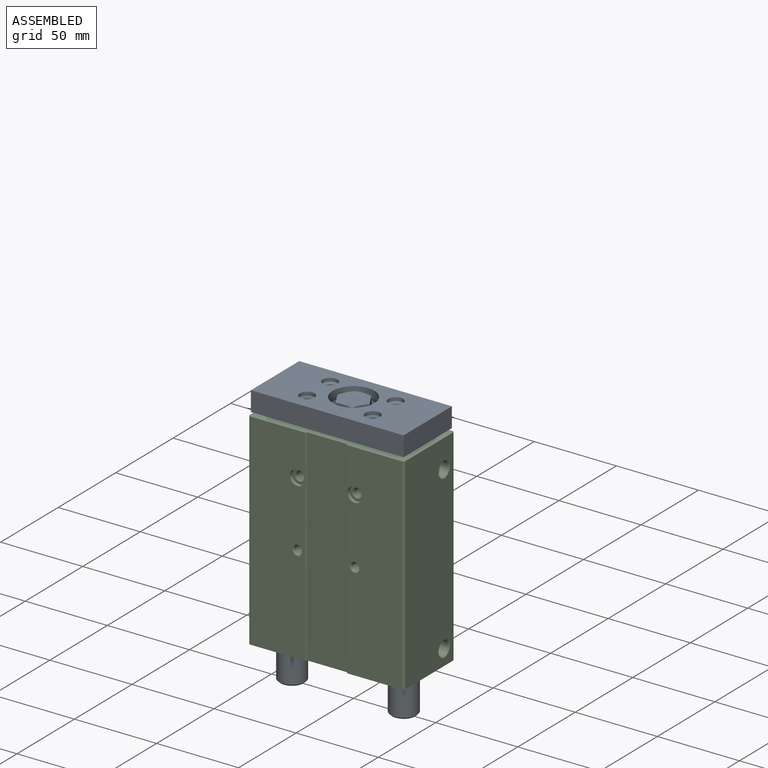
[diagram: assembled view]
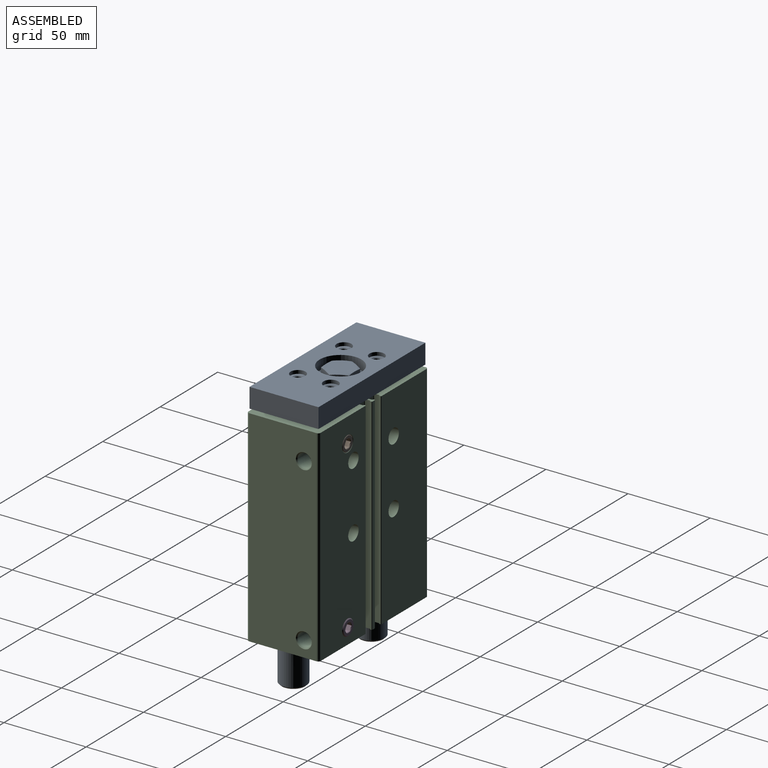
[diagram: assembled view, second angle]
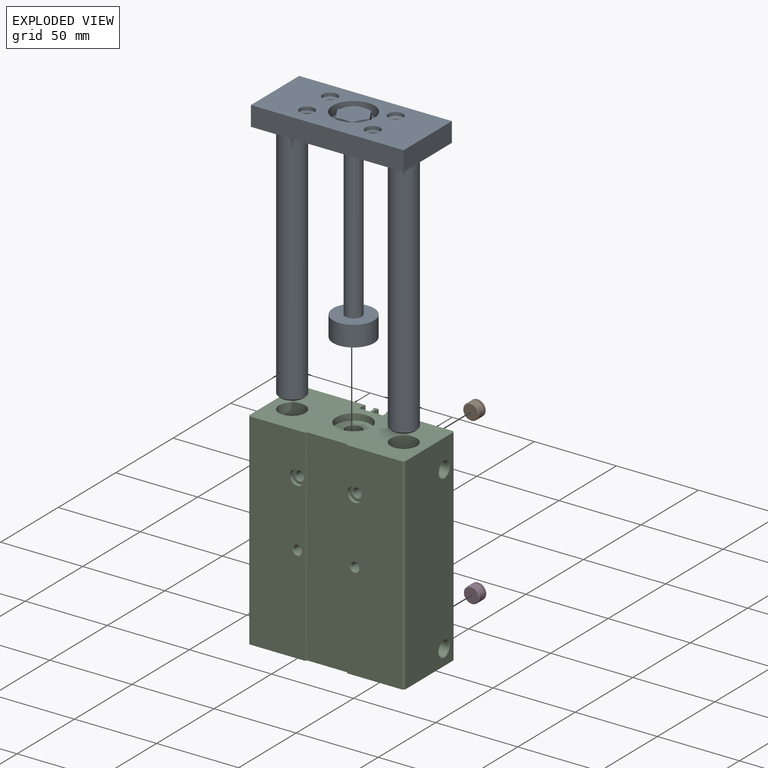
[diagram: exploded view]
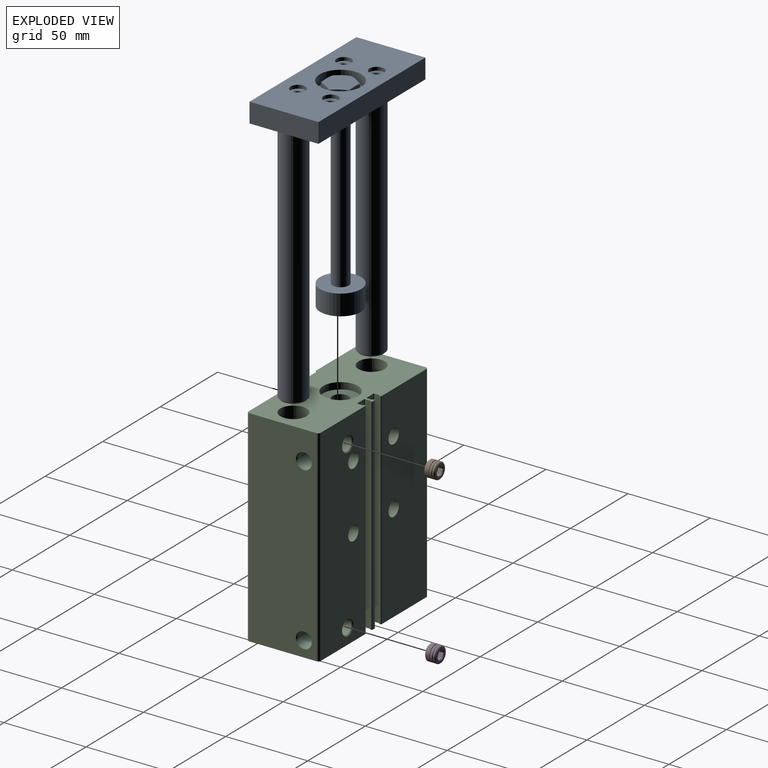
[diagram: exploded view, second angle]
ASSEMBLY  parts=4 mates=3
PART A: 76 faces, bbox 163.7x42.7x93.7 mm
  f0: plane 9.21x5.71mm, normal (0,-0.5,0.87), area 46.7mm2, adj f10,f12,f69,f70,f72,f74
  f1: plane 10.54x5.73mm, normal (0,1,0), area 46.7mm2, adj f62,f66,f67,f71,f72,f73
  f2: plane 9.21x5.71mm, normal (0,-0.5,-0.87), area 46.7mm2, adj f63,f64,f65,f70,f71,f75
  f3: plane 93x12mm, normal (0,-1,0), area 1116mm2, adj f4,f5,f33,f41
  f4: plane 42x12mm, normal (0,0,-1), area 504mm2, adj f3,f33,f41,f68
  f5: plane 42x12mm, normal (0,0,1), area 504mm2, adj f3,f33,f41,f68
  f6: cone r=8.5mm half-angle=75deg, axis (1,0,0), area 6.4mm2, adj f9,f30,f55
  f7: cone r=8.5mm half-angle=75deg, axis (1,0,0), area 6.4mm2, adj f9,f17,f55
  f8: cone r=8.5mm half-angle=75deg, axis (1,0,0), area 6.4mm2, adj f15,f30,f55
  f9: plane 10.54x5.73mm, normal (0,-1,0), area 46.7mm2, adj f6,f7,f17,f27,f28,f30
  f10: cone r=8.5mm half-angle=75deg, axis (1,0,0), area 6.4mm2, adj f0,f61,f72
  f11: cone r=8.5mm half-angle=75deg, axis (1,0,0), area 6.4mm2, adj f14,f15,f55
  f12: cone r=10.2mm half-angle=75deg, axis (-1,0,0), area 6.4mm2, adj f0,f33,f70
  f13: cone r=8.5mm half-angle=75deg, axis (1,0,0), area 6.4mm2, adj f14,f31,f55
  f14: plane 10.54x5.73mm, normal (0,1,0), area 46.7mm2, adj f11,f13,f15,f25,f29,f31
  f15: plane 9.21x5.71mm, normal (0,0.5,-0.87), area 46.7mm2, adj f8,f11,f14,f16,f29,f30
  f16: cone r=10.2mm half-angle=75deg, axis (-1,0,0), area 6.4mm2, adj f15,f24,f30
  f17: plane 9.21x5.71mm, normal (0,-0.5,0.87), area 46.7mm2, adj f7,f9,f26,f27,f31,f32
  f18: cone r=7mm half-angle=45deg, axis (1,0,0), area 66.6mm2, adj f19,f20
  f19: plane 14x14mm, normal (-1,0,0), area 153.9mm2, adj f18
  f20: cylinder r=8mm len=150mm, axis (-1,0,0), area 7539.8mm2, adj f18,f33
  f21: cylinder r=8mm len=150mm, axis (-1,0,0), area 7539.8mm2, adj f22,f33
  f22: cone r=7mm half-angle=45deg, axis (1,0,0), area 66.6mm2, adj f21,f23
  f23: plane 14x14mm, normal (-1,0,0), area 153.9mm2, adj f22
  f24: plane 17x17mm, normal (1,0,0), area 227mm2, adj f16,f25,f26,f27,f28,f29
  f25: cone r=10.2mm half-angle=75deg, axis (-1,0,0), area 6.4mm2, adj f14,f24,f31
  f26: cone r=10.2mm half-angle=75deg, axis (-1,0,0), area 6.4mm2, adj f17,f24,f31
  f27: cone r=10.2mm half-angle=75deg, axis (-1,0,0), area 6.4mm2, adj f9,f17,f24
  f28: cone r=10.2mm half-angle=75deg, axis (-1,0,0), area 6.4mm2, adj f9,f24,f30
  f29: cone r=10.2mm half-angle=75deg, axis (-1,0,0), area 6.4mm2, adj f14,f15,f24
  f30: plane 9.21x5.71mm, normal (0,-0.5,-0.87), area 46.7mm2, adj f6,f8,f9,f15,f16,f28
  f31: plane 9.21x5.71mm, normal (0,0.5,0.87), area 46.7mm2, adj f13,f14,f17,f25,f26,f32
  f32: cone r=8.5mm half-angle=75deg, axis (1,0,0), area 6.4mm2, adj f17,f31,f55
  f33: plane 93x42mm, normal (-1,0,0), area 3163.8mm2, adj f3,f4,f5,f12,f20,f21,f34,f40
  f34: cone r=3mm half-angle=45deg, axis (-1,0,0), area 13.1mm2, adj f33,f35
  f35: cylinder r=2.46mm len=8.82mm, axis (-1,0,0), area 136.2mm2, adj f34,f46
  f36: cylinder r=4.5mm len=9mm, axis (-1,0,0), area 59.4mm2, adj f37,f41
  f37: plane 9x9mm, normal (1,0,0), area 35.3mm2, adj f36,f38
  f38: cone r=2.46mm half-angle=45deg, axis (1,0,0), area 13.1mm2, adj f37,f39
  f39: cylinder r=2.46mm len=8.82mm, axis (-1,0,0), area 136.2mm2, adj f38,f40
  f40: cone r=3mm half-angle=45deg, axis (-1,0,0), area 13.1mm2, adj f33,f39
  f41: plane 93x42mm, normal (1,0,0), area 3140.8mm2, adj f3,f4,f5,f36,f44,f49,f54,f56
  f42: cone r=3mm half-angle=45deg, axis (-1,0,0), area 13.1mm2, adj f33,f43
  f43: cylinder r=2.46mm len=8.82mm, axis (-1,0,0), area 136.2mm2, adj f42,f47
  f44: cylinder r=4.5mm len=9mm, axis (-1,0,0), area 59.4mm2, adj f41,f45
  f45: plane 9x9mm, normal (1,0,0), area 35.3mm2, adj f44,f46
  f46: cone r=2.46mm half-angle=45deg, axis (1,0,0), area 13.1mm2, adj f35,f45
  f47: cone r=2.46mm half-angle=45deg, axis (1,0,0), area 13.1mm2, adj f43,f48
  f48: plane 9x9mm, normal (1,0,0), area 35.3mm2, adj f47,f49
  f49: cylinder r=4.5mm len=9mm, axis (-1,0,0), area 59.4mm2, adj f41,f48
  f50: cone r=3mm half-angle=45deg, axis (-1,0,0), area 13.1mm2, adj f33,f51
  f51: cylinder r=2.46mm len=8.82mm, axis (-1,0,0), area 136.2mm2, adj f50,f52
  f52: cone r=2.46mm half-angle=45deg, axis (1,0,0), area 13.1mm2, adj f51,f53
  f53: plane 9x9mm, normal (1,0,0), area 35.3mm2, adj f52,f54
  f54: cylinder r=4.5mm len=9mm, axis (-1,0,0), area 59.4mm2, adj f41,f53
  f55: plane 25.5x25.5mm, normal (1,0,0), area 283.7mm2, adj f6,f7,f8,f11,f13,f32,f56
  f56: cylinder r=12.75mm len=25.5mm, axis (-1,0,0), area 480.7mm2, adj f41,f55
  f57: plane 25x25mm, normal (-1,0,0), area 490.9mm2, adj f58
  f58: cylinder r=12.5mm len=25mm, axis (-1,0,0), area 981.7mm2, adj f57,f59
  f59: plane 25x25mm, normal (1,0,0), area 412.3mm2, adj f58,f60
  f60: cylinder r=5mm len=94.5mm, axis (-1,0,0), area 2968.8mm2, adj f59,f61
  f61: plane 17x17mm, normal (-1,0,0), area 148.4mm2, adj f10,f60,f62,f63,f73,f74,f75
  f62: cone r=8.5mm half-angle=75deg, axis (1,0,0), area 6.4mm2, adj f1,f61,f71
  f63: cone r=8.5mm half-angle=75deg, axis (1,0,0), area 6.4mm2, adj f2,f61,f71
  f64: cone r=10.2mm half-angle=75deg, axis (-1,0,0), area 6.4mm2, adj f2,f33,f70
  f65: cone r=10.2mm half-angle=75deg, axis (-1,0,0), area 6.4mm2, adj f2,f33,f71
  f66: cone r=10.2mm half-angle=75deg, axis (-1,0,0), area 6.4mm2, adj f1,f33,f71
  f67: cone r=10.2mm half-angle=75deg, axis (-1,0,0), area 6.4mm2, adj f1,f33,f72
  f68: plane 93x12mm, normal (0,1,0), area 1116mm2, adj f4,f5,f33,f41
  f69: cone r=10.2mm half-angle=75deg, axis (-1,0,0), area 6.4mm2, adj f0,f33,f72
  f70: plane 10.54x5.73mm, normal (0,-1,0), area 46.7mm2, adj f0,f2,f12,f64,f74,f75
  f71: plane 9.21x5.71mm, normal (0,0.5,-0.87), area 46.7mm2, adj f1,f2,f62,f63,f65,f66
  f72: plane 9.21x5.71mm, normal (0,0.5,0.87), area 46.7mm2, adj f0,f1,f10,f67,f69,f73
  f73: cone r=8.5mm half-angle=75deg, axis (1,0,0), area 6.4mm2, adj f1,f61,f72
  f74: cone r=8.5mm half-angle=75deg, axis (1,0,0), area 6.4mm2, adj f0,f61,f70
  f75: cone r=8.5mm half-angle=75deg, axis (1,0,0), area 6.4mm2, adj f2,f61,f70
PART B: 25 faces, bbox 9.7x9.7x6.5 mm
  f0: plane 2.99x2.5mm, normal (0.5,-0.87,0), area 7.9mm2, adj f1,f4,f11,f19,f21
  f1: plane 2.99x2.5mm, normal (-0.5,-0.87,0), area 7.9mm2, adj f0,f2,f11,f21,f22
  f2: plane 2.99x2.89mm, normal (-1,0,0), area 7.9mm2, adj f1,f6,f11,f22,f23
  f3: plane 2.99x2.5mm, normal (0.5,0.87,0), area 7.9mm2, adj f4,f11,f20,f23,f24
  f4: plane 2.99x2.89mm, normal (1,0,0), area 7.9mm2, adj f0,f3,f11,f19,f20
  f5: cone r=2.5mm half-angle=74.5deg, axis (0,0,1), area 20.4mm2, adj f6,f19,f20,f21,f22,f24
  f6: plane 2.17x1.25mm, normal (0,0,1), area 0.3mm2, adj f2,f5,f23
  f7: cylinder r=4.86mm len=9.73mm, axis (0,0,1), area 27.5mm2, adj f13,f14
  f8: plane 8.73x8.73mm, normal (0,0,1), area 33.4mm2, adj f11,f13
  f9: cylinder r=4.86mm len=9.73mm, axis (0,0,1), area 33.6mm2, adj f15,f17
  f10: cylinder r=4.86mm len=9.73mm, axis (0,0,1), area 76.4mm2, adj f12,f18
  f11: cone r=2.9mm half-angle=45deg, axis (0,0,1), area 6.7mm2, adj f0,f1,f2,f3,f4,f8,f23
  f12: cone r=4.86mm half-angle=45deg, axis (0,0,1), area 20.5mm2, adj f10,f16
  f13: cone r=4.36mm half-angle=45deg, axis (0,0,-1), area 20.5mm2, adj f7,f8
  f14: plane 9.73x9.73mm, normal (0,0,-1), area 14.5mm2, adj f7,f15
  f15: cone r=4.36mm half-angle=45deg, axis (0,0,-1), area 20.5mm2, adj f9,f14
  f16: plane 8.73x8.73mm, normal (0,0,-1), area 59.8mm2, adj f12
  f17: cone r=4.86mm half-angle=45deg, axis (0,0,1), area 20.5mm2, adj f9,f18
  f18: plane 9.73x9.73mm, normal (0,0,1), area 14.5mm2, adj f10,f17
  f19: plane 2.17x1.25mm, normal (0,0,1), area 0.3mm2, adj f0,f4,f5
  f20: plane 2.17x1.25mm, normal (0,0,1), area 0.3mm2, adj f3,f4,f5
  f21: plane 2.5x0.72mm, normal (0,0,1), area 0.3mm2, adj f0,f1,f5
  f22: plane 2.17x1.25mm, normal (0,0,1), area 0.3mm2, adj f1,f2,f5
  f23: plane 2.99x2.5mm, normal (-0.5,0.87,0), area 7.9mm2, adj f2,f3,f6,f11,f24
  f24: plane 2.5x0.72mm, normal (0,0,1), area 0.3mm2, adj f3,f5,f23
PART C: 131 faces, bbox 125.6x44x95 mm
  f0: cone r=2.46mm half-angle=60deg, axis (-1,0,0), area 21.9mm2, adj f1
  f1: cylinder r=2.46mm len=14.04mm, axis (-1,0,0), area 216.9mm2, adj f0,f2
  f2: cone r=3mm half-angle=45deg, axis (-1,0,0), area 13.1mm2, adj f1,f3
  f3: plane 95x44mm, normal (-1,0,0), area 3499.2mm2, adj f2,f4,f5,f6,f7,f8,f9,f10
  f4: cylinder r=0.4mm len=125.6mm, axis (-1,0,0), area 78.9mm2, adj f3,f5,f47,f55
  f5: plane 125.6x0.7mm, normal (0,0,-1), area 87.9mm2, adj f3,f4,f6,f55
  f6: cylinder r=0.2mm len=125.6mm, axis (-1,0,0), area 39.5mm2, adj f3,f5,f7,f55
  f7: plane 125.6x0.25mm, normal (0,-1,0), area 31.4mm2, adj f3,f6,f8,f55
  f8: cylinder r=0.2mm len=125.6mm, axis (-1,0,0), area 39.5mm2, adj f3,f7,f9,f55
  f9: plane 125.6x3.1mm, normal (0,0,-1), area 389.4mm2, adj f3,f8,f10,f55
  f10: cylinder r=0.4mm len=125.6mm, axis (-1,0,0), area 78.9mm2, adj f3,f9,f11,f55
  f11: plane 125.6x5.7mm, normal (0,1,0), area 715.9mm2, adj f3,f10,f12,f55
  f12: cylinder r=0.4mm len=125.6mm, axis (-1,0,0), area 78.9mm2, adj f3,f11,f13,f55
  f13: plane 125.6x3.1mm, normal (0,0,1), area 389.4mm2, adj f3,f12,f14,f55
  f14: cylinder r=0.2mm len=125.6mm, axis (-1,0,0), area 39.5mm2, adj f3,f13,f15,f55
  f15: plane 125.6x0.25mm, normal (0,-1,0), area 31.4mm2, adj f3,f14,f16,f55
  f16: cylinder r=0.2mm len=125.6mm, axis (-1,0,0), area 39.5mm2, adj f3,f15,f17,f55
  f17: plane 125.6x0.7mm, normal (0,0,1), area 87.9mm2, adj f3,f16,f18,f55
  f18: cylinder r=0.4mm len=125.6mm, axis (-1,0,0), area 78.9mm2, adj f3,f17,f19,f55
  f19: plane 125.6x2mm, normal (0,1,0), area 251.2mm2, adj f3,f18,f20,f55
  f20: cylinder r=0.4mm len=125.6mm, axis (-1,0,0), area 78.9mm2, adj f3,f19,f21,f55
  f21: plane 125.6x0.7mm, normal (0,0,-1), area 87.9mm2, adj f3,f20,f22,f55
  f22: cylinder r=0.2mm len=125.6mm, axis (-1,0,0), area 39.5mm2, adj f3,f21,f23,f55
  f23: plane 125.6x0.25mm, normal (0,-1,0), area 31.4mm2, adj f3,f22,f24,f55
  f24: cylinder r=0.2mm len=125.6mm, axis (-1,0,0), area 39.5mm2, adj f3,f23,f25,f55
  f25: plane 125.6x3.1mm, normal (0,0,-1), area 389.4mm2, adj f3,f24,f26,f55
  f26: cylinder r=0.4mm len=125.6mm, axis (-1,0,0), area 78.9mm2, adj f3,f25,f27,f55
  f27: plane 125.6x5.7mm, normal (0,1,0), area 715.9mm2, adj f3,f26,f28,f55
  f28: cylinder r=0.4mm len=125.6mm, axis (-1,0,0), area 78.9mm2, adj f3,f27,f29,f55
  f29: plane 125.6x3.1mm, normal (0,0,1), area 389.4mm2, adj f3,f28,f30,f55
  f30: cylinder r=0.2mm len=125.6mm, axis (-1,0,0), area 39.5mm2, adj f3,f29,f31,f55
  f31: plane 125.6x0.25mm, normal (0,-1,0), area 31.4mm2, adj f3,f30,f32,f55
  f32: cylinder r=0.2mm len=125.6mm, axis (-1,0,0), area 39.5mm2, adj f3,f31,f33,f55
  f33: plane 125.6x0.7mm, normal (0,0,1), area 87.9mm2, adj f3,f32,f34,f55
  f34: cylinder r=0.4mm len=125.6mm, axis (-1,0,0), area 78.9mm2, adj f3,f33,f35,f55
  f35: plane 125.6x39mm, normal (0,1,0), area 4622.5mm2, adj f3,f34,f36,f55,f56,f57,f58,f59
  f36: cylinder r=1.5mm len=125.6mm, axis (-1,0,0), area 295.9mm2, adj f3,f35,f37,f55
  f37: plane 125.6x41mm, normal (0,0,-1), area 5000.9mm2, adj f3,f36,f38,f55,f60,f61
  f38: cylinder r=1.5mm len=125.6mm, axis (-1,0,0), area 295.9mm2, adj f3,f37,f39,f55
  f39: plane 125.6x33.2mm, normal (0,-1,0), area 4078mm2, adj f3,f38,f40,f55,f62,f63
  f40: plane 125.6x1mm, normal (0,-0.5,0.87), area 145mm2, adj f3,f39,f41,f55
  f41: plane 125.6x24.45mm, normal (0,-1,0), area 3070.3mm2, adj f3,f40,f42,f55
  f42: plane 125.6x1mm, normal (0,-0.5,-0.87), area 145mm2, adj f3,f41,f43,f55
  f43: plane 125.6x33.2mm, normal (0,-1,0), area 4078mm2, adj f3,f42,f44,f55,f64,f65
  f44: cylinder r=1.5mm len=125.6mm, axis (-1,0,0), area 295.9mm2, adj f3,f43,f45,f55
  f45: plane 125.6x41mm, normal (0,0,1), area 5121.3mm2, adj f3,f44,f46,f55,f66
  f46: cylinder r=1.5mm len=125.6mm, axis (-1,0,0), area 295.9mm2, adj f3,f45,f47,f55
  f47: plane 125.6x39mm, normal (0,1,0), area 4771.2mm2, adj f3,f4,f46,f55,f67,f68
  f48: cylinder r=3.5mm len=7mm, axis (1,0,0), area 35.2mm2, adj f3,f69
  f49: cylinder r=3.5mm len=7mm, axis (1,0,0), area 35.2mm2, adj f3,f70
  f50: cone r=3mm half-angle=45deg, axis (-1,0,0), area 13.1mm2, adj f3,f71
  f51: cone r=3mm half-angle=45deg, axis (-1,0,0), area 13.1mm2, adj f3,f72
  f52: cone r=3mm half-angle=45deg, axis (-1,0,0), area 13.1mm2, adj f3,f73
  f53: cylinder r=8mm len=125.6mm, axis (-1,0,0), area 6313.3mm2, adj f3,f55
  f54: cylinder r=8mm len=125.6mm, axis (-1,0,0), area 6313.3mm2, adj f3,f55
  f55: plane 95x44mm, normal (1,0,0), area 3334.6mm2, adj f4,f5,f6,f7,f8,f9,f10,f11
  f56: cylinder r=4.5mm len=9mm, axis (0,1,0), area 161.2mm2, adj f35,f75
  f57: cylinder r=4.5mm len=9mm, axis (0,1,0), area 161.2mm2, adj f35,f76
  f58: cone r=4.28mm half-angle=45deg, axis (0,1,0), area 23.6mm2, adj f35,f77
  f59: cone r=4.28mm half-angle=45deg, axis (0,1,0), area 23.6mm2, adj f35,f78
  f60: cone r=4.28mm half-angle=45deg, axis (0,0,-1), area 23.6mm2, adj f37,f79
  f61: cone r=4.28mm half-angle=45deg, axis (0,0,-1), area 23.6mm2, adj f37,f80
  f62: cone r=2.46mm half-angle=45deg, axis (0,-1,0), area 13.1mm2, adj f39,f81
  f63: cylinder r=4.5mm len=9mm, axis (0,1,0), area 59.4mm2, adj f39,f82
  f64: cone r=2.46mm half-angle=45deg, axis (0,-1,0), area 13.1mm2, adj f43,f83
  f65: cylinder r=4.5mm len=9mm, axis (0,1,0), area 59.4mm2, adj f43,f84
  f66: cone r=3mm half-angle=45deg, axis (0,0,1), area 13.1mm2, adj f45,f85
  f67: cylinder r=4.5mm len=9mm, axis (0,1,0), area 161.2mm2, adj f47,f86
  f68: cylinder r=4.5mm len=9mm, axis (0,1,0), area 161.2mm2, adj f47,f87
  f69: plane 7x7mm, normal (-1,0,0), area 38.5mm2, adj f48
  f70: plane 7x7mm, normal (-1,0,0), area 38.5mm2, adj f49
  f71: cylinder r=2.46mm len=14.04mm, axis (-1,0,0), area 216.9mm2, adj f50,f88
  f72: cylinder r=2.46mm len=14.04mm, axis (-1,0,0), area 216.9mm2, adj f51,f89
  f73: cylinder r=2.46mm len=14.04mm, axis (-1,0,0), area 216.9mm2, adj f52,f90
  f74: cylinder r=10.62mm len=21.25mm, axis (-1,0,0), area 267mm2, adj f55,f91
  f75: plane 9x9mm, normal (0,1,0), area 42.4mm2, adj f56,f92
  f76: plane 9x9mm, normal (0,1,0), area 42.4mm2, adj f57,f93
  f77: cylinder r=4.28mm len=9.15mm, axis (0,-1,0), area 246.2mm2, adj f58,f94
  f78: cylinder r=4.28mm len=9.15mm, axis (0,-1,0), area 246.2mm2, adj f59,f95
  f79: cylinder r=4.28mm len=9.15mm, axis (0,0,1), area 246.2mm2, adj f60,f96
  f80: cylinder r=4.28mm len=9.15mm, axis (0,0,1), area 246.2mm2, adj f61,f97
  f81: cylinder r=2.46mm len=13.46mm, axis (0,1,0), area 207.9mm2, adj f62,f98
  f82: plane 9x9mm, normal (0,-1,0), area 35.3mm2, adj f63,f99
  f83: cylinder r=2.46mm len=13.46mm, axis (0,1,0), area 207.9mm2, adj f64,f100
  f84: plane 9x9mm, normal (0,-1,0), area 35.3mm2, adj f65,f101
  f85: cylinder r=2.46mm len=14.04mm, axis (0,0,1), area 216.9mm2, adj f66,f102
  f86: plane 9x9mm, normal (0,1,0), area 42.4mm2, adj f67,f103
  f87: plane 9x9mm, normal (0,1,0), area 42.4mm2, adj f68,f104
  f88: cone r=2.46mm half-angle=60deg, axis (-1,0,0), area 21.9mm2, adj f71
  f89: cone r=2.46mm half-angle=60deg, axis (-1,0,0), area 21.9mm2, adj f72
  f90: cone r=2.46mm half-angle=60deg, axis (-1,0,0), area 21.9mm2, adj f73
  f91: plane 21.25x21.25mm, normal (1,0,0), area 276.1mm2, adj f74,f105
  f92: cylinder r=2.6mm len=24.3mm, axis (0,1,0), area 397mm2, adj f75,f98
  f93: cylinder r=2.6mm len=24.3mm, axis (0,1,0), area 397mm2, adj f76,f106
  f94: plane 8.57x8.57mm, normal (0,1,0), area 57.6mm2, adj f77
  f95: plane 8.57x8.57mm, normal (0,1,0), area 57.6mm2, adj f78
  f96: plane 8.57x8.57mm, normal (0,0,-1), area 57.6mm2, adj f79
  f97: plane 8.57x8.57mm, normal (0,0,-1), area 57.6mm2, adj f80
  f98: plane 5.2x5.2mm, normal (0,1,0), area 2.2mm2, adj f81,f92
  f99: cone r=2.46mm half-angle=45deg, axis (0,-1,0), area 13.1mm2, adj f82,f107
  f100: plane 5.2x5.2mm, normal (0,1,0), area 2.2mm2, adj f83,f103
  f101: cone r=2.46mm half-angle=45deg, axis (0,-1,0), area 13.1mm2, adj f84,f108
  f102: cone r=2.46mm half-angle=60deg, axis (0,0,1), area 21.9mm2, adj f85
  f103: cylinder r=2.6mm len=24.3mm, axis (0,1,0), area 397mm2, adj f86,f100
  f104: cylinder r=2.6mm len=24.3mm, axis (0,1,0), area 397mm2, adj f87,f109
  f105: cylinder r=5mm len=13.5mm, axis (-1,0,0), area 424.1mm2, adj f91,f110
  f106: plane 5.2x5.2mm, normal (0,1,0), area 2.2mm2, adj f93,f107
  f107: cylinder r=2.46mm len=11.36mm, axis (0,1,0), area 175.5mm2, adj f99,f106
  f108: cylinder r=2.46mm len=11.36mm, axis (0,1,0), area 175.5mm2, adj f101,f109
  f109: plane 5.2x5.2mm, normal (0,1,0), area 2.2mm2, adj f104,f108
  f110: plane 25x25mm, normal (-1,0,0), area 412.3mm2, adj f105,f111
  f111: cylinder r=12.5mm len=92.5mm, axis (-1,0,0), area 7264.9mm2, adj f110,f112
  f112: plane 25x25mm, normal (1,0,0), area 490.9mm2, adj f111
  f113: plane 6x6mm, normal (0,0,-1), area 28.3mm2, adj f114
  f114: cone r=3mm half-angle=45deg, axis (0,0,1), area 13.1mm2, adj f113,f115
  f115: cylinder r=2.46mm len=14.04mm, axis (0,0,1), area 216.9mm2, adj f114,f116
  f116: cone r=2.46mm half-angle=60deg, axis (0,0,1), area 21.9mm2, adj f115
  f117: plane 7x7mm, normal (0,0,-1), area 38.5mm2, adj f118
  f118: cylinder r=3.5mm len=7mm, axis (0,0,1), area 35.2mm2, adj f117,f119
  f119: plane 7x7mm, normal (0,0,1), area 38.5mm2, adj f118
  f120: plane 7x7mm, normal (0,0,-1), area 38.5mm2, adj f121
  f121: cylinder r=3.5mm len=7mm, axis (0,0,1), area 35.2mm2, adj f120,f122
  f122: plane 7x7mm, normal (0,0,1), area 38.5mm2, adj f121
  f123: plane 6x6mm, normal (0,0,1), area 28.3mm2, adj f124
  f124: cone r=3mm half-angle=45deg, axis (0,0,1), area 13.1mm2, adj f123,f125
  f125: cylinder r=2.46mm len=14.04mm, axis (0,0,1), area 216.9mm2, adj f124,f126
  f126: cone r=2.46mm half-angle=60deg, axis (0,0,1), area 21.9mm2, adj f125
  f127: plane 6x6mm, normal (0,0,1), area 28.3mm2, adj f128
  f128: cone r=3mm half-angle=45deg, axis (0,0,1), area 13.1mm2, adj f127,f129
  f129: cylinder r=2.46mm len=14.04mm, axis (0,0,1), area 216.9mm2, adj f128,f130
  f130: cone r=2.46mm half-angle=60deg, axis (0,0,1), area 21.9mm2, adj f129
PART D: same geometry as B
PLACE A rot(axis=(0,-1,0),90deg) t=(0,0,0)mm
PLACE B rot(axis=(-0.58,-0.58,-0.58),120deg) t=(22.5,20.1,-15)mm
PLACE C rot(axis=(0,-1,0),90deg) t=(0,0,0)mm fixed
PLACE D rot(axis=(-0.58,-0.58,-0.58),120deg) t=(22.5,20.6,-116.1)mm
MATE fastened B.f5 <-> C.f59  axis (0,1,0) through (22.5,20.1,-15)mm
MATE cylindrical A.f6 <-> C.f74  axis (0,0,-1) through (0,0,-110)mm
MATE fastened D.f5 <-> C.f58  axis (0,-1,0) through (22.5,20.1,-116.1)mm
